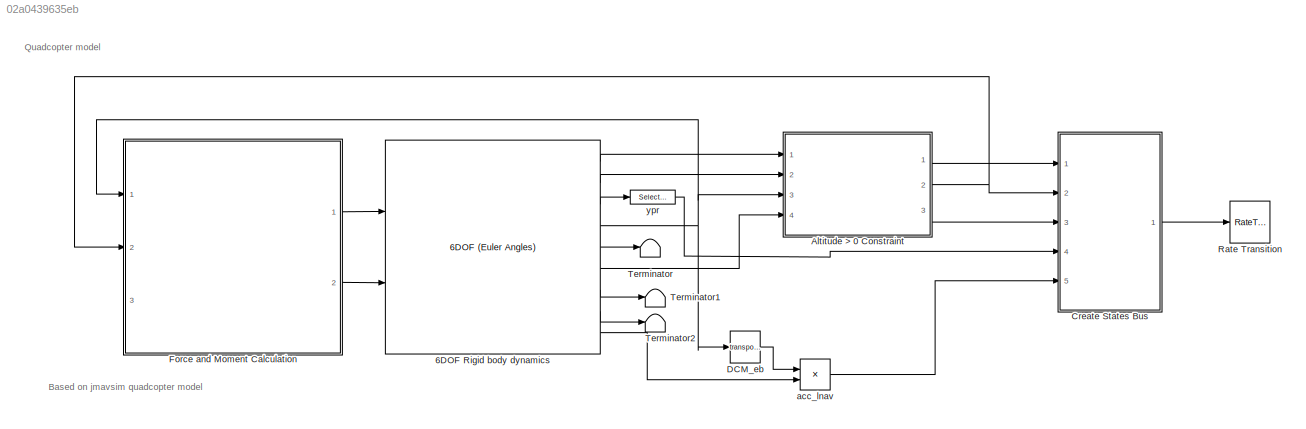
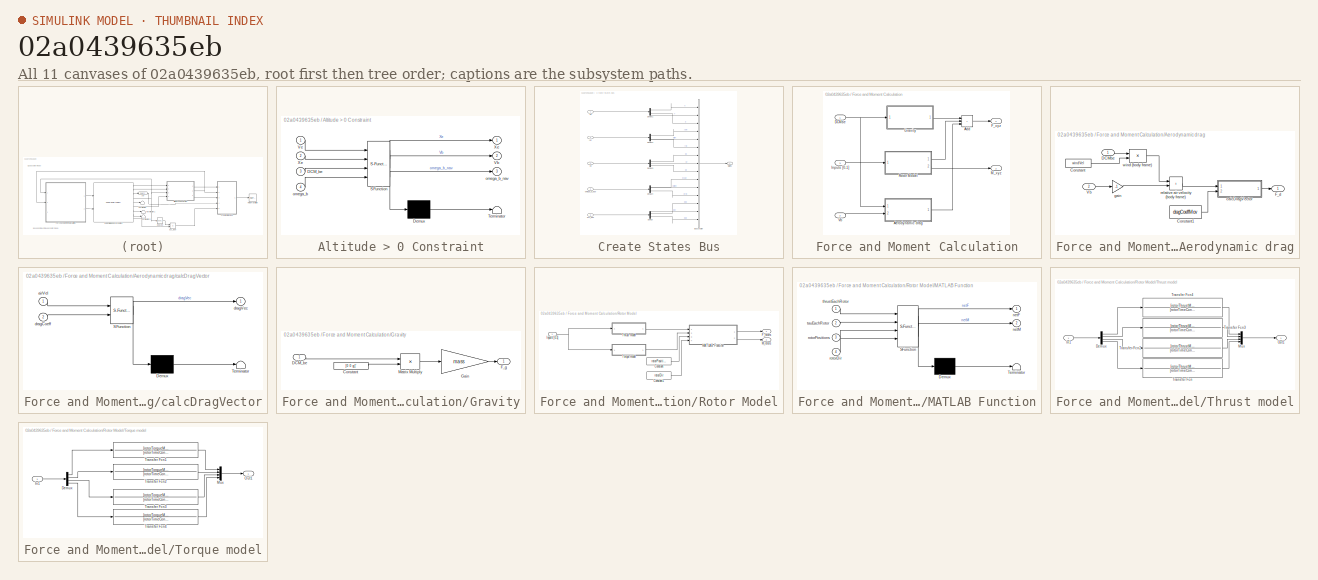
[diagram: thumbnail index - all 11 canvases of the model, root first then tree order]
MODEL slx_02a0439635eb
KIND model
CONFIG AbsTol = auto
CONFIG EnableMultiTasking = off
CONFIG FixedStep = auto
CONFIG MaxStep = auto
CONFIG MinStep = auto
CONFIG RelTol = 1e-3
CONFIG SampleTimeConstraint = Unconstrained
CONFIG SolverName = VariableStepAuto
CONFIG StartTime = 0.0
CONFIG StopTime = 10.0
BLOCK [Reference] 6DOF Rigid body dynamics   REF=shared6dof/6DOF (Euler Angles)
  Ports = [2, 9]
  SourceBlock = shared6dof/6DOF (Euler Angles)
  SourceProductBaseCode = AE,PW,MT,UV,VE,VP
  SourceType = 6DOF EoM (Body Axis)
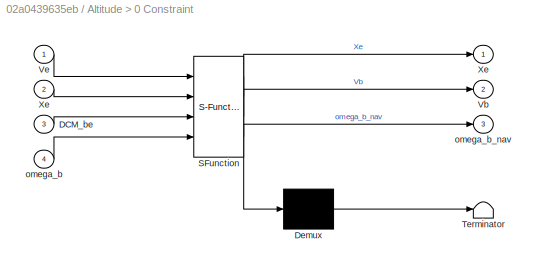
BLOCK [SubSystem] Altitude > 0 Constraint
  ErrorFcn = Stateflow.Translate.translate
  PermitHierarchicalResolution = ExplicitOnly
  Ports = [4, 3]
  RequestExecContextInheritance = off
  SFBlockType = MATLAB Function
  TreatAsAtomicUnit = on
BLOCK [Demux] Altitude > 0 Constraint/ Demux 
  Outputs = 1
  Ports = [1, 1]
BLOCK [S-Function] Altitude > 0 Constraint/ SFunction 
  EnableBusSupport = on
  FunctionName = sf_sfun
  PortCounts = [4 4]
  Ports = [4, 4]
  SFcnIsStateOwnerBlock = off
  SFunctionDeploymentMode = off
  Tag = Stateflow S-Function 4
BLOCK [Terminator] Altitude > 0 Constraint/ Terminator 
BLOCK [Inport] Altitude > 0 Constraint/DCM_be
  Port = 3
BLOCK [Outport] Altitude > 0 Constraint/Vb
  Port = 2
BLOCK [Inport] Altitude > 0 Constraint/Ve
BLOCK [Outport] Altitude > 0 Constraint/Xe
BLOCK [Inport] Altitude > 0 Constraint/Xe 
  Port = 2
BLOCK [Inport] Altitude > 0 Constraint/omega_b
  Port = 4
BLOCK [Outport] Altitude > 0 Constraint/omega_b_nav
  Port = 3
BLOCK [SubSystem] Create States Bus
  Ports = [5, 1]
  RequestExecContextInheritance = off
BLOCK [BusCreator] Create States Bus/Bus Creator
  DisplayOption = bar
  InheritFromInputs = on
  Inputs = 15
  Ports = [15, 1]
BLOCK [Demux] Create States Bus/Demux
  Outputs = 3
  Ports = [1, 3]
BLOCK [Demux] Create States Bus/Demux1
  Outputs = 3
  Ports = [1, 3]
BLOCK [Demux] Create States Bus/Demux2
  Outputs = 3
  Ports = [1, 3]
BLOCK [Demux] Create States Bus/Demux3
  Outputs = 3
  Ports = [1, 3]
BLOCK [Demux] Create States Bus/Demux4
  Outputs = 3
  Ports = [1, 3]
BLOCK [Outport] Create States Bus/States
BLOCK [Inport] Create States Bus/Vb
  Port = 2
BLOCK [Inport] Create States Bus/Xe
BLOCK [Inport] Create States Bus/acc_lnav
  Port = 5
BLOCK [Inport] Create States Bus/omega_b_lnav
  Port = 3
BLOCK [Inport] Create States Bus/ypr
  Port = 4
BLOCK [Math] DCM_eb
  Operator = transpose
  Ports = [1, 1]
BLOCK [SubSystem] Force and Moment Calculation
  Ports = [3, 2]
  RequestExecContextInheritance = off
BLOCK [Sum] Force and Moment Calculation/Add
  IconShape = rectangular
  Inputs = +++
  Ports = [3, 1]
BLOCK [SubSystem] Force and Moment Calculation/Aerodynamic drag
  Ports = [2, 1]
  RequestExecContextInheritance = off
BLOCK [Constant] Force and Moment Calculation/Aerodynamic drag/Constant
  Value = windVel
BLOCK [Constant] Force and Moment Calculation/Aerodynamic drag/Constant1
  Value = dragCoeffMov
BLOCK [Inport] Force and Moment Calculation/Aerodynamic drag/DCMbe
BLOCK [Outport] Force and Moment Calculation/Aerodynamic drag/F_d
BLOCK [Inport] Force and Moment Calculation/Aerodynamic drag/Vb
  Port = 2
BLOCK [SubSystem] Force and Moment Calculation/Aerodynamic drag/calcDragVector
  ErrorFcn = Stateflow.Translate.translate
  PermitHierarchicalResolution = ExplicitOnly
  Ports = [2, 1]
  RequestExecContextInheritance = off
  SFBlockType = MATLAB Function
  TreatAsAtomicUnit = on
BLOCK [Demux] Force and Moment Calculation/Aerodynamic drag/calcDragVector/ Demux 
  Outputs = 1
  Ports = [1, 1]
BLOCK [S-Function] Force and Moment Calculation/Aerodynamic drag/calcDragVector/ SFunction 
  EnableBusSupport = on
  FunctionName = sf_sfun
  PortCounts = [2 2]
  Ports = [2, 2]
  SFcnIsStateOwnerBlock = off
  SFunctionDeploymentMode = off
  Tag = Stateflow S-Function 3
BLOCK [Terminator] Force and Moment Calculation/Aerodynamic drag/calcDragVector/ Terminator 
BLOCK [Inport] Force and Moment Calculation/Aerodynamic drag/calcDragVector/airVel
BLOCK [Inport] Force and Moment Calculation/Aerodynamic drag/calcDragVector/dragCoeff
  Port = 2
BLOCK [Outport] Force and Moment Calculation/Aerodynamic drag/calcDragVector/dragVec
BLOCK [Gain] Force and Moment Calculation/Aerodynamic drag/gain
  Gain = -1
BLOCK [Sum] Force and Moment Calculation/Aerodynamic drag/relative air velocity (body frame)
  IconShape = rectangular
  Ports = [2, 1]
BLOCK [Product] Force and Moment Calculation/Aerodynamic drag/wind (body frame)
  Multiplication = Matrix(*)
  Ports = [2, 1]
BLOCK [Inport] Force and Moment Calculation/DCMbe
BLOCK [Outport] Force and Moment Calculation/F_xyz
BLOCK [SubSystem] Force and Moment Calculation/Gravity
  Ports = [1, 1]
  RequestExecContextInheritance = off
BLOCK [Constant] Force and Moment Calculation/Gravity/Constant
  Value = [0 0 g]'
BLOCK [Inport] Force and Moment Calculation/Gravity/DCM_be
BLOCK [Outport] Force and Moment Calculation/Gravity/F_g
BLOCK [Gain] Force and Moment Calculation/Gravity/Gain
  Gain = mass
BLOCK [Product] Force and Moment Calculation/Gravity/Matrix Multiply
  Multiplication = Matrix(*)
  Ports = [2, 1]
BLOCK [Inport] Force and Moment Calculation/Inputs [0-1]
  Port = 3
BLOCK [Outport] Force and Moment Calculation/M_xyz
  Port = 2
BLOCK [SubSystem] Force and Moment Calculation/Rotor Model
  Ports = [1, 2]
  RequestExecContextInheritance = off
BLOCK [Constant] Force and Moment Calculation/Rotor Model/Constant
  Value = rotorPositions
BLOCK [Constant] Force and Moment Calculation/Rotor Model/Constant1
  Value = rotorDir
BLOCK [Outport] Force and Moment Calculation/Rotor Model/F_rotors
BLOCK [Inport] Force and Moment Calculation/Rotor Model/Inputs [0-1]
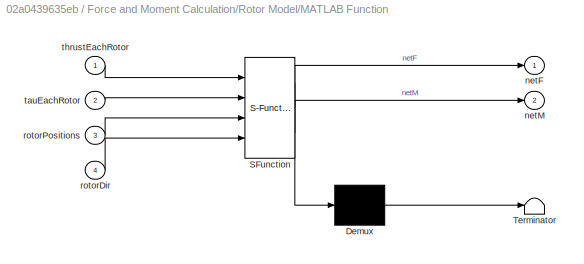
BLOCK [SubSystem] Force and Moment Calculation/Rotor Model/MATLAB Function
  ErrorFcn = Stateflow.Translate.translate
  PermitHierarchicalResolution = ExplicitOnly
  Ports = [4, 2]
  RequestExecContextInheritance = off
  SFBlockType = MATLAB Function
  TreatAsAtomicUnit = on
BLOCK [Demux] Force and Moment Calculation/Rotor Model/MATLAB Function/ Demux 
  Outputs = 1
  Ports = [1, 1]
BLOCK [S-Function] Force and Moment Calculation/Rotor Model/MATLAB Function/ SFunction 
  EnableBusSupport = on
  FunctionName = sf_sfun
  PortCounts = [4 3]
  Ports = [4, 3]
  SFcnIsStateOwnerBlock = off
  SFunctionDeploymentMode = off
  Tag = Stateflow S-Function 5
BLOCK [Terminator] Force and Moment Calculation/Rotor Model/MATLAB Function/ Terminator 
BLOCK [Outport] Force and Moment Calculation/Rotor Model/MATLAB Function/netF
  VectorParamsAs1DForOutWhenUnconnected = off
BLOCK [Outport] Force and Moment Calculation/Rotor Model/MATLAB Function/netM
  Port = 2
BLOCK [Inport] Force and Moment Calculation/Rotor Model/MATLAB Function/rotorDir
  Port = 4
BLOCK [Inport] Force and Moment Calculation/Rotor Model/MATLAB Function/rotorPositions
  Port = 3
BLOCK [Inport] Force and Moment Calculation/Rotor Model/MATLAB Function/tauEachRotor
  Port = 2
BLOCK [Inport] Force and Moment Calculation/Rotor Model/MATLAB Function/thrustEachRotor
BLOCK [Outport] Force and Moment Calculation/Rotor Model/M_rotors
  Port = 2
BLOCK [SubSystem] Force and Moment Calculation/Rotor Model/Thrust model
  Ports = [1, 1]
  RequestExecContextInheritance = off
BLOCK [Demux] Force and Moment Calculation/Rotor Model/Thrust model/Demux
  Ports = [1, 4]
BLOCK [Inport] Force and Moment Calculation/Rotor Model/Thrust model/In1
BLOCK [Mux] Force and Moment Calculation/Rotor Model/Thrust model/Mux
  DisplayOption = bar
  Ports = [4, 1]
BLOCK [Outport] Force and Moment Calculation/Rotor Model/Thrust model/Out1
BLOCK [TransferFcn] Force and Moment Calculation/Rotor Model/Thrust model/Transfer Fcn
  Denominator = [rotorTimeConst 1]
  Numerator = [rotorThrustMax]
BLOCK [TransferFcn] Force and Moment Calculation/Rotor Model/Thrust model/Transfer Fcn2
  Denominator = [rotorTimeConst 1]
  Numerator = [rotorThrustMax]
BLOCK [TransferFcn] Force and Moment Calculation/Rotor Model/Thrust model/Transfer Fcn3
  Denominator = [rotorTimeConst 1]
  Numerator = [rotorThrustMax]
BLOCK [TransferFcn] Force and Moment Calculation/Rotor Model/Thrust model/Transfer Fcn4
  Denominator = [rotorTimeConst 1]
  Numerator = [rotorThrustMax]
BLOCK [SubSystem] Force and Moment Calculation/Rotor Model/Torque model
  Ports = [1, 1]
  RequestExecContextInheritance = off
BLOCK [Demux] Force and Moment Calculation/Rotor Model/Torque model/Demux
  Ports = [1, 4]
BLOCK [Inport] Force and Moment Calculation/Rotor Model/Torque model/In1
BLOCK [Mux] Force and Moment Calculation/Rotor Model/Torque model/Mux
  DisplayOption = bar
  Ports = [4, 1]
BLOCK [Outport] Force and Moment Calculation/Rotor Model/Torque model/Out1
BLOCK [TransferFcn] Force and Moment Calculation/Rotor Model/Torque model/Transfer Fcn1
  Denominator = [rotorTimeConst 1]
  Numerator = [rotorTorqueMax]
BLOCK [TransferFcn] Force and Moment Calculation/Rotor Model/Torque model/Transfer Fcn2
  Denominator = [rotorTimeConst 1]
  Numerator = [rotorTorqueMax]
BLOCK [TransferFcn] Force and Moment Calculation/Rotor Model/Torque model/Transfer Fcn3
  Denominator = [rotorTimeConst 1]
  Numerator = [rotorTorqueMax]
BLOCK [TransferFcn] Force and Moment Calculation/Rotor Model/Torque model/Transfer Fcn4
  Denominator = [rotorTimeConst 1]
  Numerator = [rotorTorqueMax]
BLOCK [Inport] Force and Moment Calculation/Vb
  Port = 2
BLOCK [RateTransition] Rate Transition
  OutPortSampleTime = SampleTime
BLOCK [Terminator] Terminator
BLOCK [Terminator] Terminator1
BLOCK [Terminator] Terminator2
BLOCK [Product] acc_lnav
  Multiplication = Matrix(*)
  Ports = [2, 1]
BLOCK [Selector] ypr
  IndexOptions = Index vector (dialog)
  Indices = [3 2 1]
  InputPortWidth = 3
  OutputSizes = 1
  Ports = [1, 1]
ANNOTATION (root): Based on jmavsim quadcopter model
ANNOTATION (root): Quadcopter model
LINE 6DOF Rigid body dynamics :1 -> Altitude > 0 Constraint:1
LINE 6DOF Rigid body dynamics :2 -> Altitude > 0 Constraint:2
LINE 6DOF Rigid body dynamics :3 -> ypr:1
NET 6DOF Rigid body dynamics :4 -> Altitude > 0 Constraint:3, DCM_eb:1, Force and Moment Calculation:1
LINE 6DOF Rigid body dynamics :5 -> Terminator:1
LINE 6DOF Rigid body dynamics :6 -> Altitude > 0 Constraint:4
LINE 6DOF Rigid body dynamics :7 -> Terminator1:1
LINE 6DOF Rigid body dynamics :8 -> Terminator2:1
LINE 6DOF Rigid body dynamics :9 -> acc_lnav:2
LINE Altitude > 0 Constraint:1 -> Create States Bus:1
NET Altitude > 0 Constraint:2 -> Create States Bus:2, Force and Moment Calculation:2
LINE Altitude > 0 Constraint:3 -> Create States Bus:3
LINE Create States Bus/Bus Creator:1 -> Create States Bus/States:1
LINE Create States Bus/Demux1:1 -> Create States Bus/Bus Creator:1
LINE Create States Bus/Demux1:2 -> Create States Bus/Bus Creator:2
LINE Create States Bus/Demux1:3 -> Create States Bus/Bus Creator:3
LINE Create States Bus/Demux2:1 -> Create States Bus/Bus Creator:4
LINE Create States Bus/Demux2:2 -> Create States Bus/Bus Creator:5
LINE Create States Bus/Demux2:3 -> Create States Bus/Bus Creator:6
LINE Create States Bus/Demux3:1 -> Create States Bus/Bus Creator:7
LINE Create States Bus/Demux3:2 -> Create States Bus/Bus Creator:8
LINE Create States Bus/Demux3:3 -> Create States Bus/Bus Creator:9
LINE Create States Bus/Demux4:1 -> Create States Bus/Bus Creator:10
LINE Create States Bus/Demux4:2 -> Create States Bus/Bus Creator:11
LINE Create States Bus/Demux4:3 -> Create States Bus/Bus Creator:12
LINE Create States Bus/Demux:1 -> Create States Bus/Bus Creator:13
LINE Create States Bus/Demux:2 -> Create States Bus/Bus Creator:14
LINE Create States Bus/Demux:3 -> Create States Bus/Bus Creator:15
LINE Create States Bus/Vb:1 -> Create States Bus/Demux3:1
LINE Create States Bus/Xe:1 -> Create States Bus/Demux1:1
LINE Create States Bus/acc_lnav:1 -> Create States Bus/Demux:1
LINE Create States Bus/omega_b_lnav:1 -> Create States Bus/Demux4:1
LINE Create States Bus/ypr:1 -> Create States Bus/Demux2:1
LINE Create States Bus:1 -> Rate Transition:1
LINE DCM_eb:1 -> acc_lnav:1
LINE Force and Moment Calculation/Add:1 -> Force and Moment Calculation/F_xyz:1
LINE Force and Moment Calculation/Aerodynamic drag/Constant1:1 -> Force and Moment Calculation/Aerodynamic drag/calcDragVector:2
LINE Force and Moment Calculation/Aerodynamic drag/Constant:1 -> Force and Moment Calculation/Aerodynamic drag/wind (body frame):2
LINE Force and Moment Calculation/Aerodynamic drag/DCMbe:1 -> Force and Moment Calculation/Aerodynamic drag/wind (body frame):1
LINE Force and Moment Calculation/Aerodynamic drag/Vb:1 -> Force and Moment Calculation/Aerodynamic drag/gain:1
LINE Force and Moment Calculation/Aerodynamic drag/calcDragVector:1 -> Force and Moment Calculation/Aerodynamic drag/F_d:1
LINE Force and Moment Calculation/Aerodynamic drag/gain:1 -> Force and Moment Calculation/Aerodynamic drag/relative air velocity (body frame):2
LINE Force and Moment Calculation/Aerodynamic drag/relative air velocity (body frame):1 -> Force and Moment Calculation/Aerodynamic drag/calcDragVector:1
LINE Force and Moment Calculation/Aerodynamic drag/wind (body frame):1 -> Force and Moment Calculation/Aerodynamic drag/relative air velocity (body frame):1
LINE Force and Moment Calculation/Aerodynamic drag:1 -> Force and Moment Calculation/Add:3
NET Force and Moment Calculation/DCMbe:1 -> Force and Moment Calculation/Aerodynamic drag:1, Force and Moment Calculation/Gravity:1
LINE Force and Moment Calculation/Gravity/Constant:1 -> Force and Moment Calculation/Gravity/Matrix Multiply:2
LINE Force and Moment Calculation/Gravity/DCM_be:1 -> Force and Moment Calculation/Gravity/Matrix Multiply:1
LINE Force and Moment Calculation/Gravity/Gain:1 -> Force and Moment Calculation/Gravity/F_g:1
LINE Force and Moment Calculation/Gravity/Matrix Multiply:1 -> Force and Moment Calculation/Gravity/Gain:1
LINE Force and Moment Calculation/Gravity:1 -> Force and Moment Calculation/Add:1
LINE Force and Moment Calculation/Inputs [0-1]:1 -> Force and Moment Calculation/Rotor Model:1
LINE Force and Moment Calculation/Rotor Model/Constant1:1 -> Force and Moment Calculation/Rotor Model/MATLAB Function:4
LINE Force and Moment Calculation/Rotor Model/Constant:1 -> Force and Moment Calculation/Rotor Model/MATLAB Function:3
NET Force and Moment Calculation/Rotor Model/Inputs [0-1]:1 -> Force and Moment Calculation/Rotor Model/Thrust model:1, Force and Moment Calculation/Rotor Model/Torque model:1
LINE Force and Moment Calculation/Rotor Model/MATLAB Function:1 -> Force and Moment Calculation/Rotor Model/F_rotors:1
LINE Force and Moment Calculation/Rotor Model/MATLAB Function:2 -> Force and Moment Calculation/Rotor Model/M_rotors:1
LINE Force and Moment Calculation/Rotor Model/Thrust model/Demux:1 -> Force and Moment Calculation/Rotor Model/Thrust model/Transfer Fcn4:1
LINE Force and Moment Calculation/Rotor Model/Thrust model/Demux:2 -> Force and Moment Calculation/Rotor Model/Thrust model/Transfer Fcn3:1
LINE Force and Moment Calculation/Rotor Model/Thrust model/Demux:3 -> Force and Moment Calculation/Rotor Model/Thrust model/Transfer Fcn2:1
LINE Force and Moment Calculation/Rotor Model/Thrust model/Demux:4 -> Force and Moment Calculation/Rotor Model/Thrust model/Transfer Fcn:1
LINE Force and Moment Calculation/Rotor Model/Thrust model/In1:1 -> Force and Moment Calculation/Rotor Model/Thrust model/Demux:1
LINE Force and Moment Calculation/Rotor Model/Thrust model/Mux:1 -> Force and Moment Calculation/Rotor Model/Thrust model/Out1:1
LINE Force and Moment Calculation/Rotor Model/Thrust model/Transfer Fcn2:1 -> Force and Moment Calculation/Rotor Model/Thrust model/Mux:3
LINE Force and Moment Calculation/Rotor Model/Thrust model/Transfer Fcn3:1 -> Force and Moment Calculation/Rotor Model/Thrust model/Mux:2
LINE Force and Moment Calculation/Rotor Model/Thrust model/Transfer Fcn4:1 -> Force and Moment Calculation/Rotor Model/Thrust model/Mux:1
LINE Force and Moment Calculation/Rotor Model/Thrust model/Transfer Fcn:1 -> Force and Moment Calculation/Rotor Model/Thrust model/Mux:4
LINE Force and Moment Calculation/Rotor Model/Thrust model:1 -> Force and Moment Calculation/Rotor Model/MATLAB Function:1
LINE Force and Moment Calculation/Rotor Model/Torque model/Demux:1 -> Force and Moment Calculation/Rotor Model/Torque model/Transfer Fcn1:1
LINE Force and Moment Calculation/Rotor Model/Torque model/Demux:2 -> Force and Moment Calculation/Rotor Model/Torque model/Transfer Fcn2:1
LINE Force and Moment Calculation/Rotor Model/Torque model/Demux:3 -> Force and Moment Calculation/Rotor Model/Torque model/Transfer Fcn3:1
LINE Force and Moment Calculation/Rotor Model/Torque model/Demux:4 -> Force and Moment Calculation/Rotor Model/Torque model/Transfer Fcn4:1
LINE Force and Moment Calculation/Rotor Model/Torque model/In1:1 -> Force and Moment Calculation/Rotor Model/Torque model/Demux:1
LINE Force and Moment Calculation/Rotor Model/Torque model/Mux:1 -> Force and Moment Calculation/Rotor Model/Torque model/Out1:1
LINE Force and Moment Calculation/Rotor Model/Torque model/Transfer Fcn1:1 -> Force and Moment Calculation/Rotor Model/Torque model/Mux:1
LINE Force and Moment Calculation/Rotor Model/Torque model/Transfer Fcn2:1 -> Force and Moment Calculation/Rotor Model/Torque model/Mux:2
LINE Force and Moment Calculation/Rotor Model/Torque model/Transfer Fcn3:1 -> Force and Moment Calculation/Rotor Model/Torque model/Mux:3
LINE Force and Moment Calculation/Rotor Model/Torque model/Transfer Fcn4:1 -> Force and Moment Calculation/Rotor Model/Torque model/Mux:4
LINE Force and Moment Calculation/Rotor Model/Torque model:1 -> Force and Moment Calculation/Rotor Model/MATLAB Function:2
LINE Force and Moment Calculation/Rotor Model:1 -> Force and Moment Calculation/Add:2
LINE Force and Moment Calculation/Rotor Model:2 -> Force and Moment Calculation/M_xyz:1
LINE Force and Moment Calculation/Vb:1 -> Force and Moment Calculation/Aerodynamic drag:2
LINE Force and Moment Calculation:1 -> 6DOF Rigid body dynamics :1
LINE Force and Moment Calculation:2 -> 6DOF Rigid body dynamics :2
LINE acc_lnav:1 -> Create States Bus:5
LINE ypr:1 -> Create States Bus:4
note: NET lines group one-source signal fan-out (src -> all destinations, sorted); 1:1 wires keep LINE
CHART Force and Moment Calculation/Aerodynamic drag/calcDragVector states=1 transitions=1
  STATE_LABEL 'eML_blk_kernel()'
  STATE_LABEL 'SCRIPT:\nfunction dragVec = fcn(airVel, dragCoeff)\n\ndragVec = dragCoeff * norm(airVel) * airVel;\n\nend'
CHART Altitude > 0 Constraint states=1 transitions=1
  STATE_LABEL 'eML_blk_kernel()'
  STATE_LABEL "SCRIPT:\nfunction [Xe, Vb, omega_b_nav] = fcn(Ve, Xe, DCM_be, omega_b)\nz = Xe(3);\nVz = Ve(3);\n\nif z>=0 && Vz >= 0 %drone on or below gnd and still trying to do down\n    Ve = Ve*0; %reset velocity\n    omega_b = omega_b*0; %reset omega\n    z = 0; % reset height\n    Xe(3) = z;\nend\n% Ve(3) = 0;\n\nVb = Ve;\nomega_b_nav = DCM_be'*omega_b;\nend"
CHART Force and Moment Calculation/Rotor Model/MATLAB Function states=1 transitions=1
  STATE_LABEL 'eML_blk_kernel()'
  STATE_LABEL "SCRIPT:\nfunction [netF, netM] = getForceMoment(thrustEachRotor, tauEachRotor, rotorPositions, rotorDir)\n%#codegen\nFx = 0;\nFy = 0;\nFz = -sum(thrustEachRotor);\n\nnetF = [Fx; Fy; Fz];\n\nnetM = [0; 0; 0]; %initialize\n    for i = 1:4\n        rotPos = rotorPositions(:, i);\n        Fi = [0, 0, -thrustEachRotor(i)]';\n        netM = netM +  cross(rotPos, Fi);%contribution from thrusts of each propeller\n     ...<+118ch>"
CHART  states=0 transitions=0
CHART  states=0 transitions=0
CHART  states=0 transitions=0
